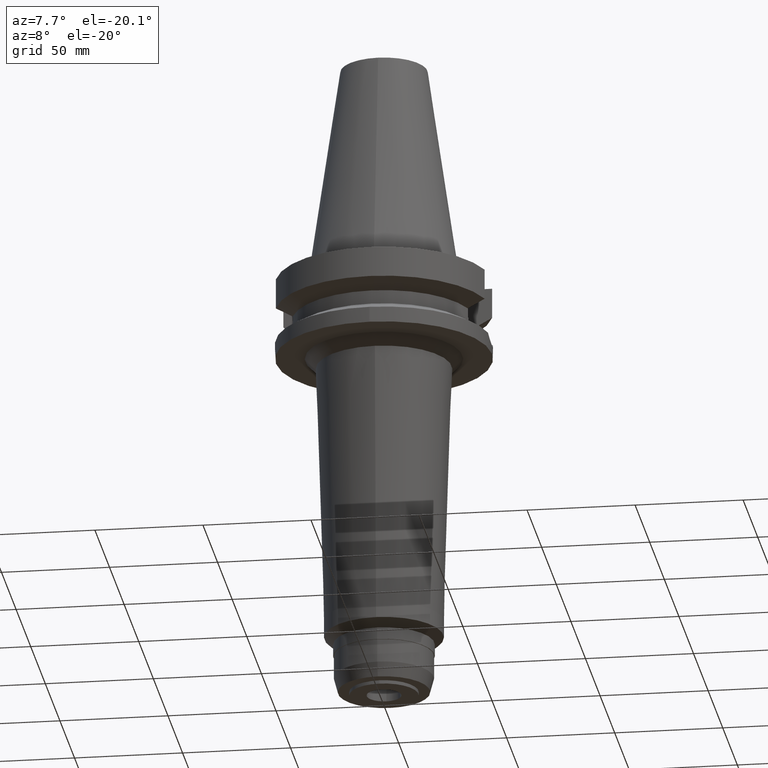
[diagram: clean part render]
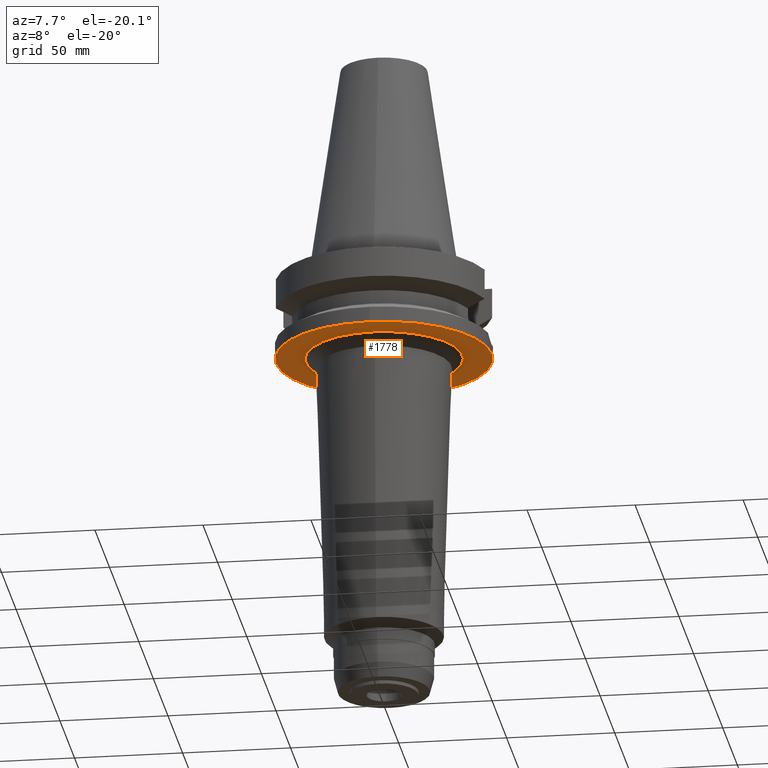
[diagram: same view with one face highlighted and labeled with its STEP entity id]
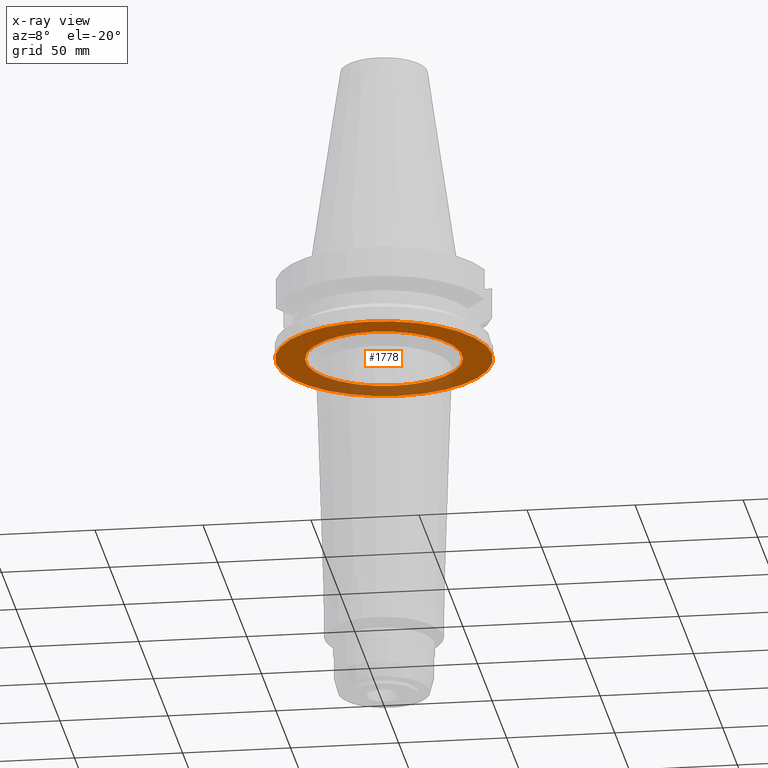
[diagram: x-ray of the same camera — body ghosted, the highlighted face saturated]
A machine part, auxiliary view. The second image highlights one B-rep face of the part: STEP entity #1778.
The next image is the same camera in x-ray: the body ghosted, the highlighted face saturated — about 25% of this face is hidden behind the body in this view.
In plain terms, the highlighted planar face has unit normal (0, 0, -1).
Its self-contained STEP definition (entity closure, byte-faithful):
#488=CARTESIAN_POINT('',(0.E0,2.657606018830E-14,-3.8E1));
#489=DIRECTION('',(0.E0,0.E0,1.E0));
#490=DIRECTION('',(0.E0,-1.E0,0.E0));
#491=AXIS2_PLACEMENT_3D('',#488,#489,#490);
#496=CARTESIAN_POINT('',(0.E0,2.657606018830E-14,-3.8E1));
#497=DIRECTION('',(0.E0,0.E0,1.E0));
#498=DIRECTION('',(0.E0,1.E0,0.E0));
#499=AXIS2_PLACEMENT_3D('',#496,#497,#498);
#504=CARTESIAN_POINT('',(0.E0,0.E0,-3.8E1));
#505=DIRECTION('',(0.E0,0.E0,-1.E0));
#506=DIRECTION('',(0.E0,-1.E0,0.E0));
#507=AXIS2_PLACEMENT_3D('',#504,#505,#506);
#512=CARTESIAN_POINT('',(0.E0,0.E0,-3.8E1));
#513=DIRECTION('',(0.E0,0.E0,-1.E0));
#514=DIRECTION('',(0.E0,1.E0,0.E0));
#515=AXIS2_PLACEMENT_3D('',#512,#513,#514);
#1204=CARTESIAN_POINT('',(0.E0,3.634458563111E1,-3.8E1));
#1205=VERTEX_POINT('',#1204);
#1206=CARTESIAN_POINT('',(0.E0,-3.634458563111E1,-3.8E1));
#1207=VERTEX_POINT('',#1206);
#1208=CARTESIAN_POINT('',(0.E0,-5.E1,-3.8E1));
#1209=CARTESIAN_POINT('',(0.E0,5.E1,-3.8E1));
#1210=VERTEX_POINT('',#1208);
#1211=VERTEX_POINT('',#1209);
#1763=CARTESIAN_POINT('',(0.E0,0.E0,-3.8E1));
#1764=DIRECTION('',(0.E0,0.E0,-1.E0));
#1765=DIRECTION('',(0.E0,-1.E0,0.E0));
#1766=AXIS2_PLACEMENT_3D('',#1763,#1764,#1765);
#1767=PLANE('',#1766);
#1769=ORIENTED_EDGE('',*,*,#1768,.T.);
#1771=ORIENTED_EDGE('',*,*,#1770,.T.);
#1772=EDGE_LOOP('',(#1769,#1771));
#1773=FACE_OUTER_BOUND('',#1772,.F.);
#1774=ORIENTED_EDGE('',*,*,#1756,.T.);
#1775=ORIENTED_EDGE('',*,*,#1745,.T.);
#1776=EDGE_LOOP('',(#1774,#1775));
#1777=FACE_BOUND('',#1776,.F.);
#492=CIRCLE('',#491,5.E1);
#500=CIRCLE('',#499,5.E1);
#508=CIRCLE('',#507,3.634458563111E1);
#516=CIRCLE('',#515,3.634458563111E1);
#1745=EDGE_CURVE('',#1205,#1207,#516,.T.);
#1756=EDGE_CURVE('',#1207,#1205,#508,.T.);
#1768=EDGE_CURVE('',#1210,#1211,#492,.T.);
#1770=EDGE_CURVE('',#1211,#1210,#500,.T.);
#1778=ADVANCED_FACE('',(#1773,#1777),#1767,.T.);